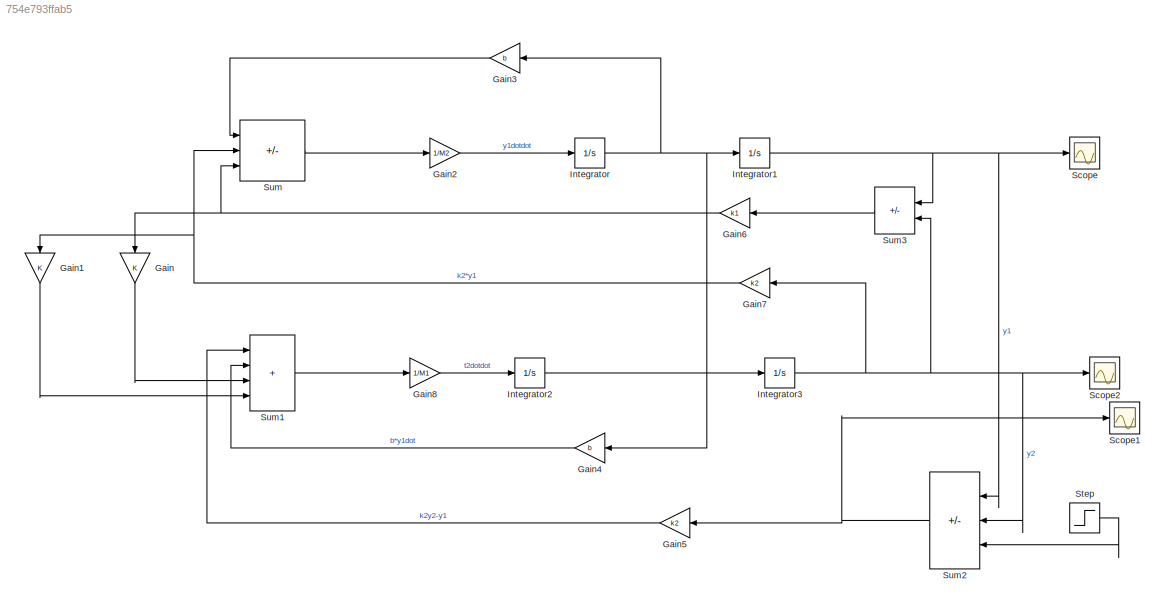
MODEL slx_754e793ffab5
KIND model
CONFIG AbsTol = auto
CONFIG EnableMultiTasking = off
CONFIG FixedStep = auto
CONFIG MaxStep = auto
CONFIG MinStep = auto
CONFIG RelTol = 1e-3
CONFIG SampleTimeConstraint = Unconstrained
CONFIG SolverName = VariableStepAuto
CONFIG StartTime = 0.0
CONFIG StopTime = 10.0
WORKSPACE source: mxarray member
WORKSPACE M1 = 100
WORKSPACE M2 = 4
WORKSPACE b = 50
WORKSPACE k1 = 50
WORKSPACE k2 = 25
BLOCK [Gain] Gain
  NameLocation = left
BLOCK [Gain] Gain1
  NameLocation = left
BLOCK [Gain] Gain2
  Gain = 1/M2
BLOCK [Gain] Gain3
  Gain = b
  NameLocation = top
BLOCK [Gain] Gain4
  Gain = b
  NameLocation = top
BLOCK [Gain] Gain5
  Gain = k2
  NameLocation = top
BLOCK [Gain] Gain6
  Gain = k1
  NameLocation = top
BLOCK [Gain] Gain7
  Gain = k2
  NameLocation = top
BLOCK [Gain] Gain8
  Gain = 1/M1
BLOCK [Integrator] Integrator
  Ports = [1, 1]
BLOCK [Integrator] Integrator1
  Ports = [1, 1]
BLOCK [Integrator] Integrator2
  Ports = [1, 1]
BLOCK [Integrator] Integrator3
  Ports = [1, 1]
BLOCK [Scope] Scope
  Floating = off
  NumInputPorts = 1
  Ports = [1]
  ScopeSpecificationString = Simulink.scopes.TimeScopeBlockCfg('CurrentConfiguration', extmgr.ConfigurationSet(extmgr.Configuration('Core','General UI',true),extmgr.Configuration('Core','Source UI',true),extmgr.Configuration('Sources','WiredSimulink',true),extmgr.Configuration('Visuals','Time Domain',true,'SerializedDisplays',{struct('MinYLimReal','-3076590808395290329317850288595068777043870089216.00000','MaxYLimReal','34184...<+1728ch>
BLOCK [Scope] Scope1
  Floating = off
  NumInputPorts = 1
  Ports = [1]
  ScopeSpecificationString = Simulink.scopes.TimeScopeBlockCfg('CurrentConfiguration', extmgr.ConfigurationSet(extmgr.Configuration('Core','General UI',true),extmgr.Configuration('Core','Source UI',true),extmgr.Configuration('Sources','WiredSimulink',true,'DataLoggingVariableName','ScopeData1'),extmgr.Configuration('Visuals','Time Domain',true,'SerializedDisplays',{struct('MinYLimReal','-32859154461977322793117166197239989913...<+1767ch>
BLOCK [Scope] Scope2
  Floating = off
  NumInputPorts = 1
  Ports = [1]
  ScopeSpecificationString = Simulink.scopes.TimeScopeBlockCfg('CurrentConfiguration', extmgr.ConfigurationSet(extmgr.Configuration('Core','General UI',true),extmgr.Configuration('Core','Source UI',true),extmgr.Configuration('Sources','WiredSimulink',true,'DataLoggingVariableName','ScopeData2'),extmgr.Configuration('Visuals','Time Domain',true,'SerializedDisplays',{struct('MinYLimReal','-11926690681733042607610197747331187902...<+1759ch>
BLOCK [Step] Step
  SampleTime = 0
BLOCK [Sum] Sum
  IconShape = rectangular
  Inputs = |+-+
  Ports = [3, 1]
BLOCK [Sum] Sum1
  IconShape = rectangular
  Inputs = |++++
  Ports = [4, 1]
BLOCK [Sum] Sum2
  IconShape = rectangular
  Inputs = |-++
  NameLocation = top
  Ports = [3, 1]
BLOCK [Sum] Sum3
  IconShape = rectangular
  Inputs = +-
  NameLocation = top
  Ports = [2, 1]
LINE Gain1:1 -> Sum1:4
LINE Gain2:1 -> Integrator:1
LINE Gain3:1 -> Sum:1
LINE Gain4:1 -> Sum1:2
LINE Gain5:1 -> Sum1:1
NET Gain6:1 -> Gain:1, Sum:3
NET Gain7:1 -> Gain1:1, Sum:2
LINE Gain8:1 -> Integrator2:1
LINE Gain:1 -> Sum1:3
NET Integrator1:1 -> Scope:1, Sum2:1, Sum3:1
LINE Integrator2:1 -> Integrator3:1
NET Integrator3:1 -> Gain7:1, Scope2:1, Sum2:2, Sum3:2
NET Integrator:1 -> Gain3:1, Gain4:1, Integrator1:1
LINE Step:1 -> Sum2:3
LINE Sum1:1 -> Gain8:1
NET Sum2:1 -> Gain5:1, Scope1:1
LINE Sum3:1 -> Gain6:1
LINE Sum:1 -> Gain2:1
note: NET lines group one-source signal fan-out (src -> all destinations, sorted); 1:1 wires keep LINE
